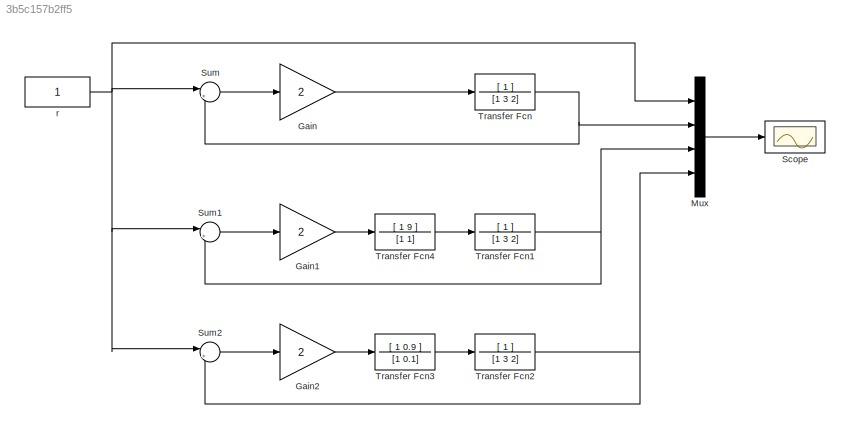
MODEL slx_3b5c157b2ff5
KIND model
CONFIG AbsTol = auto
CONFIG EnableMultiTasking = off
CONFIG FixedStep = auto
CONFIG MaxStep = auto
CONFIG MinStep = auto
CONFIG RelTol = 1e-3
CONFIG SampleTimeConstraint = Unconstrained
CONFIG SolverName = VariableStepAuto
CONFIG StartTime = 0.0
CONFIG StopTime = 20
BLOCK [Gain] Gain
  Gain = 2
BLOCK [Gain] Gain1
  Gain = 2
BLOCK [Gain] Gain2
  Gain = 2
BLOCK [Mux] Mux
  DisplayOption = bar
  Ports = [4, 1]
BLOCK [Scope] Scope
  Floating = off
  NumInputPorts = 1
  Ports = [1]
  ScopeSpecificationString = Simulink.scopes.TimeScopeBlockCfg('CurrentConfiguration', extmgr.ConfigurationSet(extmgr.Configuration('Core','General UI',true),extmgr.Configuration('Core','Source UI',true),extmgr.Configuration('Sources','WiredSimulink',true),extmgr.Configuration('Visuals','Time Domain',true,'SerializedDisplays',{struct('MinYLimReal','-0.17961','MaxYLimReal','1.61646','YLabelReal','','MinYLimMag','0.00000','MaxY...<+1404ch>
BLOCK [Sum] Sum
  Inputs = |+-
  Ports = [2, 1]
BLOCK [Sum] Sum1
  Inputs = |+-
  Ports = [2, 1]
BLOCK [Sum] Sum2
  Inputs = |+-
  Ports = [2, 1]
BLOCK [TransferFcn] Transfer Fcn
  Denominator = [1 3 2]
  Numerator = [ 1 ]
BLOCK [TransferFcn] Transfer Fcn1
  Denominator = [1 3 2]
  Numerator = [ 1 ]
BLOCK [TransferFcn] Transfer Fcn2
  Denominator = [1 3 2]
  Numerator = [ 1 ]
BLOCK [TransferFcn] Transfer Fcn3
  Denominator = [1 0.1]
  Numerator = [ 1 0.9 ]
BLOCK [TransferFcn] Transfer Fcn4
  Denominator = [1 1]
  Numerator = [ 1 9 ]
BLOCK [Constant] r
LINE Gain1:1 -> Transfer Fcn4:1
LINE Gain2:1 -> Transfer Fcn3:1
LINE Gain:1 -> Transfer Fcn:1
LINE Mux:1 -> Scope:1
LINE Sum1:1 -> Gain1:1
LINE Sum2:1 -> Gain2:1
LINE Sum:1 -> Gain:1
NET Transfer Fcn1:1 -> Mux:3, Sum1:2
NET Transfer Fcn2:1 -> Mux:4, Sum2:2
LINE Transfer Fcn3:1 -> Transfer Fcn2:1
LINE Transfer Fcn4:1 -> Transfer Fcn1:1
NET Transfer Fcn:1 -> Mux:2, Sum:2
NET r:1 -> Mux:1, Sum1:1, Sum2:1, Sum:1
note: NET lines group one-source signal fan-out (src -> all destinations, sorted); 1:1 wires keep LINE
